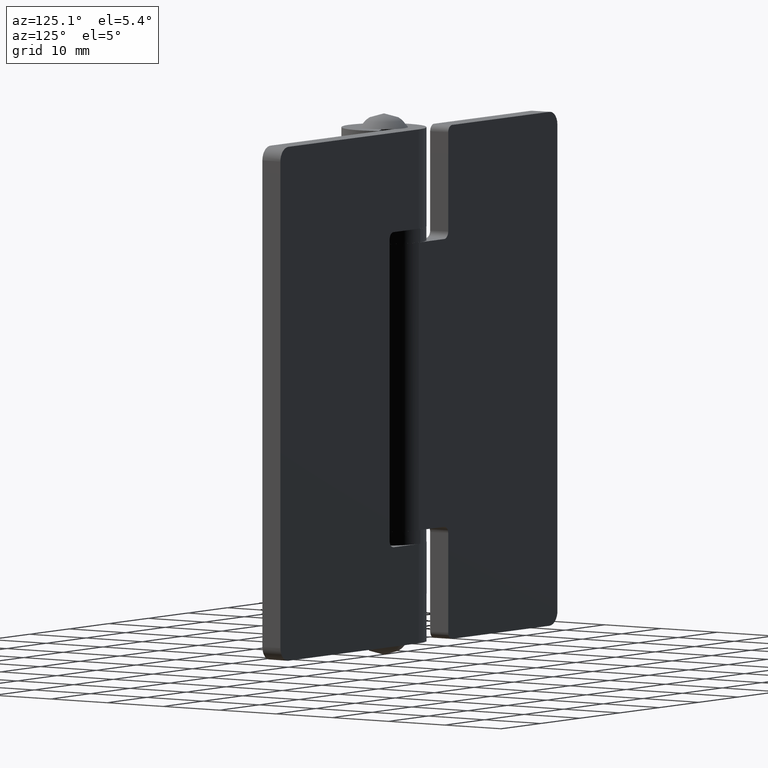
[diagram: clean part render]
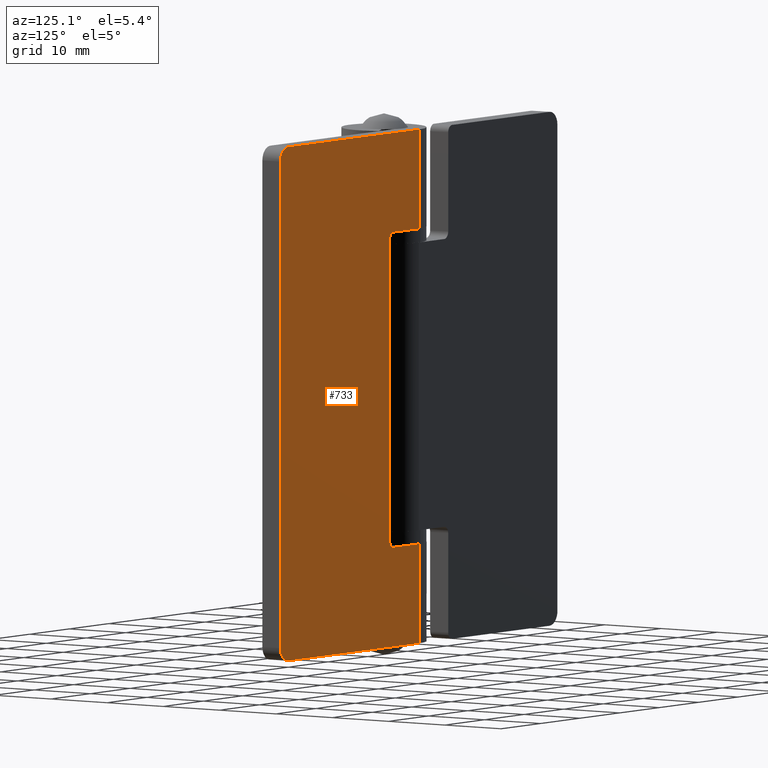
[diagram: same view with one face highlighted and labeled with its STEP entity id]
A machine part, auxiliary view. The second image highlights one B-rep face of the part: STEP entity #733.
In plain terms, the highlighted face is a freeform B-spline surface patch.
Its self-contained STEP definition (entity closure, byte-faithful):
#75=CARTESIAN_POINT('',(6.400000999999900,6.200001000000000,60.500000000000000));
#76=VERTEX_POINT('',#75);
#82=CARTESIAN_POINT('',(7.400000999999900,6.200001000000000,59.500000000000000));
#83=VERTEX_POINT('',#82);
#84=CARTESIAN_POINT('',(7.400000999999900,6.200001000000000,59.500000000000000));
#85=CARTESIAN_POINT('',(7.400000999999901,6.200001000000001,60.500000000000000));
#86=CARTESIAN_POINT('',(6.400000999999900,6.200001000000000,60.500000000000000));
#94=(BOUNDED_CURVE()B_SPLINE_CURVE(2,(#84,#85,#86),.UNSPECIFIED.,.F.,.U.)CURVE()GEOMETRIC_REPRESENTATION_ITEM()QUASI_UNIFORM_CURVE()RATIONAL_B_SPLINE_CURVE((1.0,0.707106781186548,1.0))REPRESENTATION_ITEM(''));
#95=EDGE_CURVE('',#83,#76,#94,.T.);
#136=CARTESIAN_POINT('',(7.400000999999900,6.200001000000000,15.500000000000000));
#137=VERTEX_POINT('',#136);
#143=CARTESIAN_POINT('',(6.400000999999900,6.200001000000000,14.500000000000000));
#144=VERTEX_POINT('',#143);
#145=CARTESIAN_POINT('',(6.400000999999900,6.200001000000000,14.500000000000000));
#146=CARTESIAN_POINT('',(7.400000999999901,6.200001000000001,14.500000000000000));
#147=CARTESIAN_POINT('',(7.400000999999900,6.200001000000000,15.500000000000000));
#155=(BOUNDED_CURVE()B_SPLINE_CURVE(2,(#145,#146,#147),.UNSPECIFIED.,.F.,.U.)CURVE()GEOMETRIC_REPRESENTATION_ITEM()QUASI_UNIFORM_CURVE()RATIONAL_B_SPLINE_CURVE((1.0,0.707106781186548,1.0))REPRESENTATION_ITEM(''));
#156=EDGE_CURVE('',#144,#137,#155,.T.);
#197=CARTESIAN_POINT('',(34.999983999999891,6.200001000000000,73.0));
#198=VERTEX_POINT('',#197);
#204=CARTESIAN_POINT('',(32.999983999999898,6.200001000000000,75.0));
#205=VERTEX_POINT('',#204);
#206=CARTESIAN_POINT('',(32.999983999999898,6.200001000000000,75.0));
#207=CARTESIAN_POINT('',(34.999983999999905,6.200001000000001,75.000000000000014));
#208=CARTESIAN_POINT('',(34.999983999999898,6.200001000000000,73.0));
#216=(BOUNDED_CURVE()B_SPLINE_CURVE(2,(#206,#207,#208),.UNSPECIFIED.,.F.,.U.)CURVE()GEOMETRIC_REPRESENTATION_ITEM()QUASI_UNIFORM_CURVE()RATIONAL_B_SPLINE_CURVE((1.0,0.707106781186548,1.0))REPRESENTATION_ITEM(''));
#217=EDGE_CURVE('',#205,#198,#216,.T.);
#258=CARTESIAN_POINT('',(32.999983999999898,6.200001000000000,0.0));
#259=VERTEX_POINT('',#258);
#265=CARTESIAN_POINT('',(34.999983999999891,6.200001000000000,2.0));
#266=VERTEX_POINT('',#265);
#267=CARTESIAN_POINT('',(34.999983999999898,6.200001000000000,2.0));
#268=CARTESIAN_POINT('',(34.999983999999905,6.200001000000001,0.0));
#269=CARTESIAN_POINT('',(32.999983999999898,6.200001000000000,0.0));
#277=(BOUNDED_CURVE()B_SPLINE_CURVE(2,(#267,#268,#269),.UNSPECIFIED.,.F.,.U.)CURVE()GEOMETRIC_REPRESENTATION_ITEM()QUASI_UNIFORM_CURVE()RATIONAL_B_SPLINE_CURVE((1.0,0.707106781186548,1.0))REPRESENTATION_ITEM(''));
#278=EDGE_CURVE('',#266,#259,#277,.T.);
#301=CARTESIAN_POINT('',(0.0,6.200001000000000,14.500000000000000));
#302=VERTEX_POINT('',#301);
#303=CARTESIAN_POINT('',(6.400000999999900,6.200001000000000,14.500000000000000));
#304=CARTESIAN_POINT('',(0.0,6.200001000000000,14.500000000000000));
#305=QUASI_UNIFORM_CURVE('',1,(#303,#304),.UNSPECIFIED.,.F.,.U.);
#306=EDGE_CURVE('',#144,#302,#305,.T.);
#363=CARTESIAN_POINT('',(0.0,6.200001000000000,60.500000000000000));
#364=VERTEX_POINT('',#363);
#365=CARTESIAN_POINT('',(0.0,6.200001000000000,60.500000000000000));
#366=CARTESIAN_POINT('',(6.400000999999900,6.200001000000000,60.500000000000000));
#367=QUASI_UNIFORM_CURVE('',1,(#365,#366),.UNSPECIFIED.,.F.,.U.);
#368=EDGE_CURVE('',#364,#76,#367,.T.);
#433=CARTESIAN_POINT('',(7.400000999999900,6.200001000000000,59.500000000000000));
#434=CARTESIAN_POINT('',(7.400000999999900,6.200001000000000,15.500000000000000));
#435=QUASI_UNIFORM_CURVE('',1,(#433,#434),.UNSPECIFIED.,.F.,.U.);
#436=EDGE_CURVE('',#83,#137,#435,.T.);
#453=CARTESIAN_POINT('',(0.0,6.200001000000000,0.0));
#454=VERTEX_POINT('',#453);
#455=CARTESIAN_POINT('',(32.999983999999898,6.200001000000000,0.0));
#456=CARTESIAN_POINT('',(0.0,6.200001000000000,0.0));
#457=QUASI_UNIFORM_CURVE('',1,(#455,#456),.UNSPECIFIED.,.F.,.U.);
#458=EDGE_CURVE('',#259,#454,#457,.T.);
#531=CARTESIAN_POINT('',(0.0,6.200001000000000,75.0));
#532=VERTEX_POINT('',#531);
#533=CARTESIAN_POINT('',(32.999983999999898,6.200001000000000,75.0));
#534=CARTESIAN_POINT('',(0.0,6.200001000000000,75.0));
#535=QUASI_UNIFORM_CURVE('',1,(#533,#534),.UNSPECIFIED.,.F.,.U.);
#536=EDGE_CURVE('',#205,#532,#535,.T.);
#698=CARTESIAN_POINT('',(0.0,6.200001000000000,75.0));
#699=CARTESIAN_POINT('',(0.0,6.200001000000000,60.500000000000000));
#700=QUASI_UNIFORM_CURVE('',1,(#698,#699),.UNSPECIFIED.,.F.,.U.);
#701=EDGE_CURVE('',#532,#364,#700,.T.);
#706=CARTESIAN_POINT('',(-1.748249132963234,6.200001000000000,78.746249854635451));
#707=CARTESIAN_POINT('',(-1.748249132963234,6.200001000000000,-3.746251866292208));
#708=CARTESIAN_POINT('',(36.748234071735872,6.200001000000000,78.746249854635451));
#709=CARTESIAN_POINT('',(36.748234071735872,6.200001000000000,-3.746251866292208));
#710=B_SPLINE_SURFACE_WITH_KNOTS('',1,1,((#706,#708),(#707,#709)),.UNSPECIFIED.,.F.,.F.,.U.,(2,2),(2,2),(0.0,82.492501720927663),(0.0,38.496483204699103),.UNSPECIFIED.);
#711=CARTESIAN_POINT('',(34.999983999999891,6.200001000000000,73.0));
#712=CARTESIAN_POINT('',(34.999983999999891,6.200001000000000,2.0));
#713=QUASI_UNIFORM_CURVE('',1,(#711,#712),.UNSPECIFIED.,.F.,.U.);
#714=EDGE_CURVE('',#198,#266,#713,.T.);
#715=ORIENTED_EDGE('',*,*,#714,.T.);
#716=ORIENTED_EDGE('',*,*,#278,.T.);
#717=ORIENTED_EDGE('',*,*,#458,.T.);
#718=CARTESIAN_POINT('',(0.0,6.200001000000000,14.500000000000000));
#719=CARTESIAN_POINT('',(0.0,6.200001000000000,0.0));
#720=QUASI_UNIFORM_CURVE('',1,(#718,#719),.UNSPECIFIED.,.F.,.U.);
#721=EDGE_CURVE('',#302,#454,#720,.T.);
#722=ORIENTED_EDGE('',*,*,#721,.F.);
#723=ORIENTED_EDGE('',*,*,#306,.F.);
#724=ORIENTED_EDGE('',*,*,#156,.T.);
#725=ORIENTED_EDGE('',*,*,#436,.F.);
#726=ORIENTED_EDGE('',*,*,#95,.T.);
#727=ORIENTED_EDGE('',*,*,#368,.F.);
#728=ORIENTED_EDGE('',*,*,#701,.F.);
#729=ORIENTED_EDGE('',*,*,#536,.F.);
#730=ORIENTED_EDGE('',*,*,#217,.T.);
#731=EDGE_LOOP('',(#715,#716,#717,#722,#723,#724,#725,#726,#727,#728,#729,#730));
#732=FACE_OUTER_BOUND('',#731,.T.);
#733=ADVANCED_FACE('',(#732),#710,.F.);